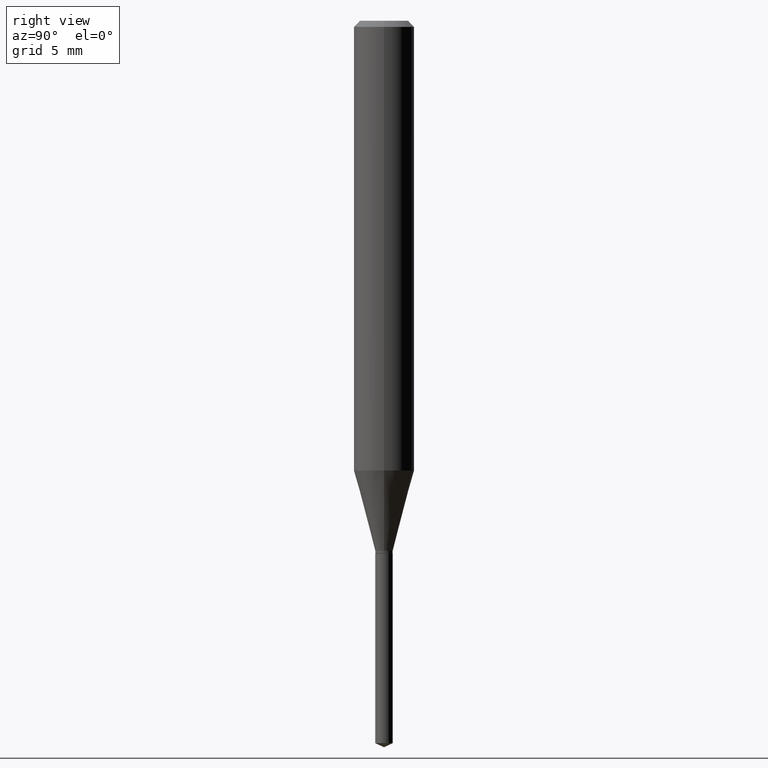
[diagram: clean part render]
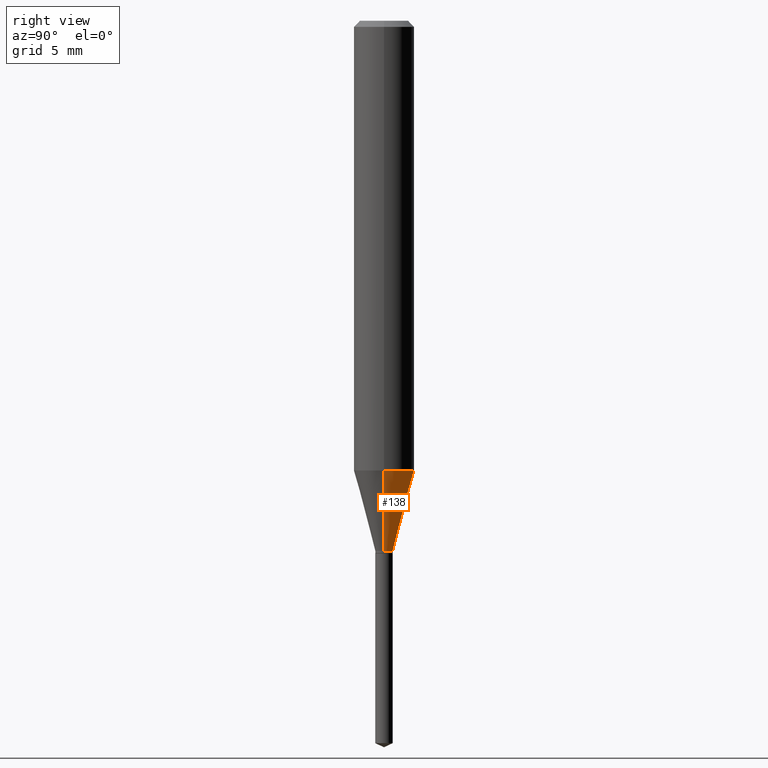
[diagram: same view with one face highlighted and labeled with its STEP entity id]
A machine part, right view. The second image highlights one B-rep face of the part: STEP entity #138.
In plain terms, the highlighted conical surface has half-angle 15 deg.
Its self-contained STEP definition (entity closure, byte-faithful):
#12 = EDGE_CURVE ( 'NONE', #447, #254, #177, .T. ) ;
#42 = ORIENTED_EDGE ( 'NONE', *, *, #79, .F. ) ;
#49 = EDGE_CURVE ( 'NONE', #447, #308, #193, .T. ) ;
#64 = ORIENTED_EDGE ( 'NONE', *, *, #49, .T. ) ;
#79 = EDGE_CURVE ( 'NONE', #254, #388, #433, .T. ) ;
#91 = CARTESIAN_POINT ( 'NONE',  ( 0.01799999999999999864, -3.947468801696060853E-15, -1.094600000000000017 ) ) ;
#102 = CARTESIAN_POINT ( 'NONE',  ( 2.270675839681406298E-29, -3.241923307611973113E-15, -0.9285237390631850829 ) ) ;
#104 = AXIS2_PLACEMENT_3D ( 'NONE', #342, #110, #144 ) ;
#110 = DIRECTION ( 'NONE',  ( -2.445468806185136597E-29, 3.491481338843145583E-15, 1.000000000000000000 ) ) ;
#113 = ORIENTED_EDGE ( 'NONE', *, *, #12, .F. ) ;
#138 = ADVANCED_FACE ( 'NONE', ( #235 ), #336, .T. ) ;
#144 = DIRECTION ( 'NONE',  ( 1.000000000000000000, -6.982962677686279332E-15, 0.000000000000000000 ) ) ;
#168 = DIRECTION ( 'NONE',  ( 1.000000000000000000, -6.982962677686267499E-15, 0.000000000000000000 ) ) ;
#177 = LINE ( 'NONE', #481, #223 ) ;
#182 = DIRECTION ( 'NONE',  ( 0.2588190451025212391, 1.565188264969622362E-15, 0.9659258262890679791 ) ) ;
#193 = CIRCLE ( 'NONE', #104, 0.01799999999999999864 ) ;
#197 = LINE ( 'NONE', #352, #302 ) ;
#203 = CARTESIAN_POINT ( 'NONE',  ( -0.06250000000000009714, -2.797834097761909708E-15, -0.9285237390631850829 ) ) ;
#216 = CARTESIAN_POINT ( 'NONE',  ( -0.01799999999999999864, -3.702431910341055478E-15, -1.094600000000000017 ) ) ;
#218 = DIRECTION ( 'NONE',  ( -2.445468806185136597E-29, 3.491481338843145583E-15, 1.000000000000000000 ) ) ;
#223 = VECTOR ( 'NONE', #182, 39.37007874015748854 ) ;
#230 = CARTESIAN_POINT ( 'NONE',  ( 0.06250000000000009714, -3.678358474967365966E-15, -0.9285237390631850829 ) ) ;
#235 = FACE_OUTER_BOUND ( 'NONE', #486, .T. ) ;
#254 = VERTEX_POINT ( 'NONE', #230 ) ;
#302 = VECTOR ( 'NONE', #387, 39.37007874015748854 ) ;
#308 = VERTEX_POINT ( 'NONE', #216 ) ;
#314 = DIRECTION ( 'NONE',  ( -2.445468806185136597E-29, 3.491481338843145583E-15, 1.000000000000000000 ) ) ;
#336 = CONICAL_SURFACE ( 'NONE', #402, 0.01799999999999999864, 0.2617993877991499629 ) ;
#342 = CARTESIAN_POINT ( 'NONE',  ( 2.676810155250250579E-29, -3.821775473497707863E-15, -1.094600000000000017 ) ) ;
#349 = ORIENTED_EDGE ( 'NONE', *, *, #418, .T. ) ;
#352 = CARTESIAN_POINT ( 'NONE',  ( -0.01799999999999999864, -3.693877781060889716E-15, -1.094600000000000017 ) ) ;
#369 = AXIS2_PLACEMENT_3D ( 'NONE', #102, #218, #168 ) ;
#387 = DIRECTION ( 'NONE',  ( -0.2588190451025212391, 5.211531920934549464E-15, 0.9659258262890679791 ) ) ;
#388 = VERTEX_POINT ( 'NONE', #203 ) ;
#392 = DIRECTION ( 'NONE',  ( 1.000000000000000000, -6.982962677686279332E-15, 0.000000000000000000 ) ) ;
#402 = AXIS2_PLACEMENT_3D ( 'NONE', #428, #314, #392 ) ;
#418 = EDGE_CURVE ( 'NONE', #308, #388, #197, .T. ) ;
#428 = CARTESIAN_POINT ( 'NONE',  ( 2.676810155250250579E-29, -3.821775473497707863E-15, -1.094600000000000017 ) ) ;
#433 = CIRCLE ( 'NONE', #369, 0.06250000000000009714 ) ;
#447 = VERTEX_POINT ( 'NONE', #91 ) ;
#481 = CARTESIAN_POINT ( 'NONE',  ( 0.01799999999999999864, -3.947468801696060853E-15, -1.094600000000000017 ) ) ;
#486 = EDGE_LOOP ( 'NONE', ( #64, #349, #42, #113 ) ) ;